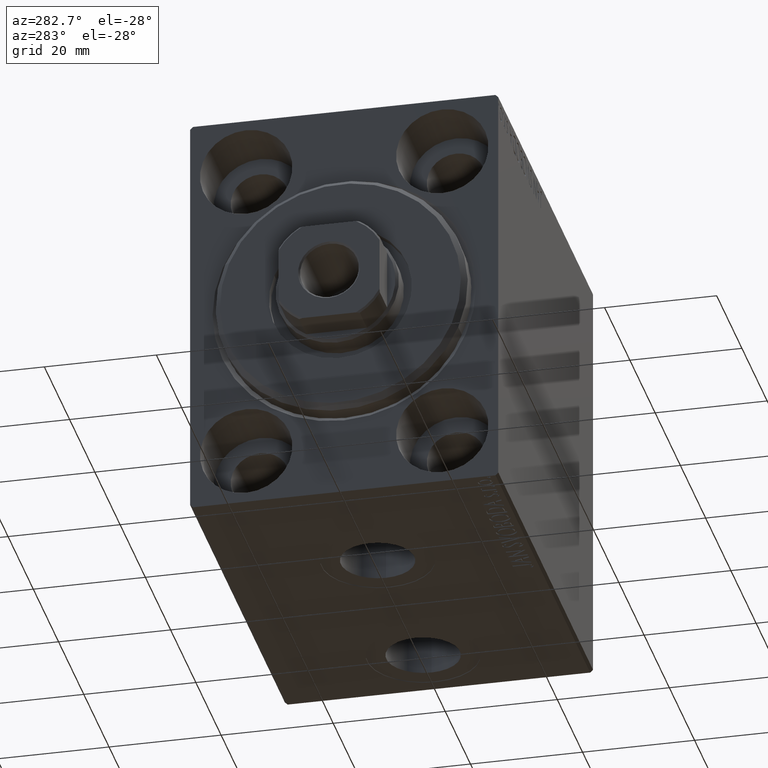
[diagram: clean part render]
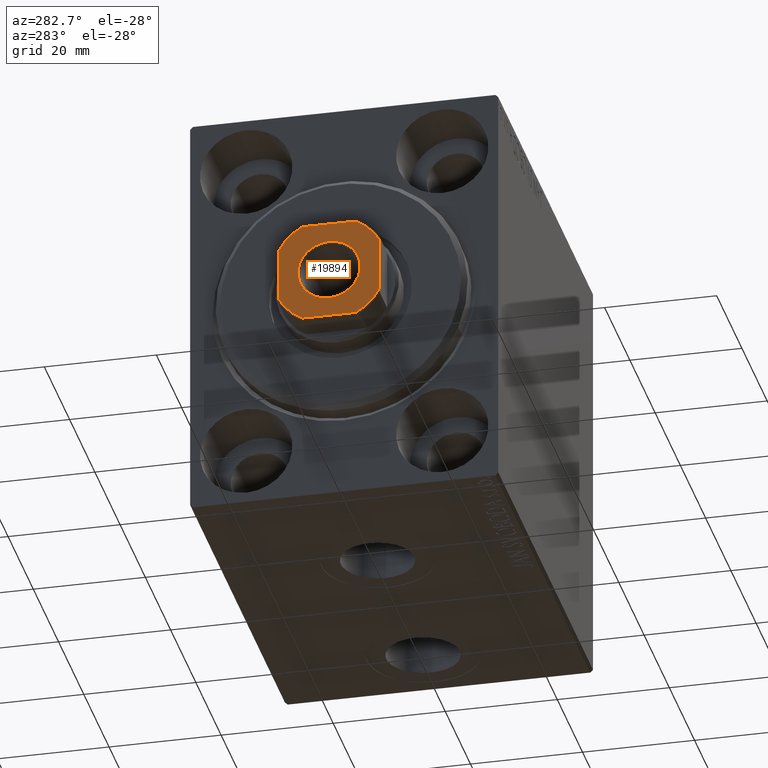
[diagram: same view with one face highlighted and labeled with its STEP entity id]
A machine part, auxiliary view. The second image highlights one B-rep face of the part: STEP entity #19894.
In plain terms, the highlighted planar face has unit normal (-1, 0, 0).
Its self-contained STEP definition (entity closure, byte-faithful):
#246 = CARTESIAN_POINT ( 'NONE',  ( 0.000000000000000000, 0.000000000000000000, 77.00000000000001421 ) ) ;
#634 = CIRCLE ( 'NONE', #23401, 10.20000000000000462 ) ;
#980 = ORIENTED_EDGE ( 'NONE', *, *, #42846, .T. ) ;
#2035 = CARTESIAN_POINT ( 'NONE',  ( 0.000000000000000000, 0.000000000000000000, 77.00000000000001421 ) ) ;
#2418 = DIRECTION ( 'NONE',  ( 1.000000000000000000, 0.000000000000000000, 0.000000000000000000 ) ) ;
#2532 = CARTESIAN_POINT ( 'NONE',  ( 9.000000000000001776, -4.800000000000007816, 77.00000000000001421 ) ) ;
#2654 = VERTEX_POINT ( 'NONE', #42446 ) ;
#2860 = DIRECTION ( 'NONE',  ( -0.000000000000000000, 0.000000000000000000, 1.000000000000000000 ) ) ;
#3159 = AXIS2_PLACEMENT_3D ( 'NONE', #23962, #23741, #13305 ) ;
#3887 = CIRCLE ( 'NONE', #3159, 10.19999999999999396 ) ;
#4149 = ORIENTED_EDGE ( 'NONE', *, *, #7291, .T. ) ;
#4389 = CARTESIAN_POINT ( 'NONE',  ( -8.999999999999998224, -4.799999999999999822, 77.00000000000001421 ) ) ;
#4807 = EDGE_CURVE ( 'NONE', #31740, #34334, #28391, .T. ) ;
#4815 = CARTESIAN_POINT ( 'NONE',  ( -8.999999999999998224, -9.000000000000001776, 77.00000000000001421 ) ) ;
#5781 = VERTEX_POINT ( 'NONE', #40286 ) ;
#5853 = AXIS2_PLACEMENT_3D ( 'NONE', #26437, #2860, #43556 ) ;
#6403 = CARTESIAN_POINT ( 'NONE',  ( -5.550000000000013145, 6.796789735267826558E-16, 77.00000000000001421 ) ) ;
#6589 = VECTOR ( 'NONE', #34751, 1000.000000000000000 ) ;
#6630 = PLANE ( 'NONE',  #5853 ) ;
#7291 = EDGE_CURVE ( 'NONE', #5781, #11635, #24075, .T. ) ;
#7361 = DIRECTION ( 'NONE',  ( 0.000000000000000000, -0.000000000000000000, -1.000000000000000000 ) ) ;
#7469 = EDGE_CURVE ( 'NONE', #39313, #8135, #34829, .T. ) ;
#7684 = EDGE_LOOP ( 'NONE', ( #33891, #20975 ) ) ;
#8135 = VERTEX_POINT ( 'NONE', #26366 ) ;
#8664 = EDGE_LOOP ( 'NONE', ( #21692, #18517, #30347, #27100, #20781, #980, #20106, #4149 ) ) ;
#9230 = AXIS2_PLACEMENT_3D ( 'NONE', #22874, #19101, #2418 ) ;
#9882 = EDGE_CURVE ( 'NONE', #19846, #5781, #18599, .T. ) ;
#9887 = VERTEX_POINT ( 'NONE', #4389 ) ;
#10306 = DIRECTION ( 'NONE',  ( -0.000000000000000000, 0.000000000000000000, 1.000000000000000000 ) ) ;
#11395 = LINE ( 'NONE', #38738, #6589 ) ;
#11635 = VERTEX_POINT ( 'NONE', #2532 ) ;
#13305 = DIRECTION ( 'NONE',  ( 1.000000000000000000, 0.000000000000000000, 0.000000000000000000 ) ) ;
#14296 = CARTESIAN_POINT ( 'NONE',  ( 0.000000000000000000, 0.000000000000000000, 77.00000000000001421 ) ) ;
#14951 = DIRECTION ( 'NONE',  ( -0.000000000000000000, 0.000000000000000000, 1.000000000000000000 ) ) ;
#15610 = DIRECTION ( 'NONE',  ( 1.000000000000000000, 0.000000000000000000, 0.000000000000000000 ) ) ;
#16966 = CIRCLE ( 'NONE', #19086, 10.19999999999999929 ) ;
#17808 = CARTESIAN_POINT ( 'NONE',  ( 8.999999999999998224, 4.800000000000010481, 77.00000000000001421 ) ) ;
#18517 = ORIENTED_EDGE ( 'NONE', *, *, #43797, .T. ) ;
#18599 = LINE ( 'NONE', #4815, #43324 ) ;
#19086 = AXIS2_PLACEMENT_3D ( 'NONE', #14296, #10306, #33881 ) ;
#19101 = DIRECTION ( 'NONE',  ( 0.000000000000000000, -0.000000000000000000, -1.000000000000000000 ) ) ;
#19122 = AXIS2_PLACEMENT_3D ( 'NONE', #43962, #41289, #36854 ) ;
#19846 = VERTEX_POINT ( 'NONE', #36889 ) ;
#19894 = ADVANCED_FACE ( 'NONE', ( #19975, #26222 ), #6630, .T. ) ;
#19975 = FACE_BOUND ( 'NONE', #7684, .T. ) ;
#20106 = ORIENTED_EDGE ( 'NONE', *, *, #9882, .T. ) ;
#20340 = EDGE_CURVE ( 'NONE', #2654, #9887, #11395, .T. ) ;
#20781 = ORIENTED_EDGE ( 'NONE', *, *, #20340, .T. ) ;
#20975 = ORIENTED_EDGE ( 'NONE', *, *, #4807, .T. ) ;
#21133 = DIRECTION ( 'NONE',  ( 1.000000000000000000, 0.000000000000000000, 0.000000000000000000 ) ) ;
#21692 = ORIENTED_EDGE ( 'NONE', *, *, #32213, .T. ) ;
#22607 = EDGE_CURVE ( 'NONE', #34334, #31740, #37168, .T. ) ;
#22874 = CARTESIAN_POINT ( 'NONE',  ( 0.000000000000000000, 0.000000000000000000, 77.00000000000001421 ) ) ;
#23088 = VECTOR ( 'NONE', #42749, 1000.000000000000000 ) ;
#23401 = AXIS2_PLACEMENT_3D ( 'NONE', #2035, #14951, #15610 ) ;
#23741 = DIRECTION ( 'NONE',  ( -0.000000000000000000, 0.000000000000000000, 1.000000000000000000 ) ) ;
#23962 = CARTESIAN_POINT ( 'NONE',  ( 0.000000000000000000, 0.000000000000000000, 77.00000000000001421 ) ) ;
#24075 = CIRCLE ( 'NONE', #19122, 10.20000000000000462 ) ;
#24815 = CARTESIAN_POINT ( 'NONE',  ( -9.000000000000001776, 8.999999999999998224, 77.00000000000001421 ) ) ;
#26222 = FACE_OUTER_BOUND ( 'NONE', #8664, .T. ) ;
#26366 = CARTESIAN_POINT ( 'NONE',  ( -4.799999999999990941, 8.999999999999998224, 77.00000000000001421 ) ) ;
#26426 = EDGE_CURVE ( 'NONE', #8135, #2654, #3887, .T. ) ;
#26437 = CARTESIAN_POINT ( 'NONE',  ( 0.000000000000000000, 0.000000000000000000, 77.00000000000001421 ) ) ;
#27100 = ORIENTED_EDGE ( 'NONE', *, *, #26426, .T. ) ;
#28391 = CIRCLE ( 'NONE', #9230, 5.550000000000013145 ) ;
#28972 = CARTESIAN_POINT ( 'NONE',  ( 5.550000000000013145, 0.000000000000000000, 77.00000000000001421 ) ) ;
#29178 = CARTESIAN_POINT ( 'NONE',  ( 8.999999999999998224, 8.999999999999998224, 77.00000000000001421 ) ) ;
#29867 = CARTESIAN_POINT ( 'NONE',  ( 4.800000000000012257, 8.999999999999998224, 77.00000000000001421 ) ) ;
#30347 = ORIENTED_EDGE ( 'NONE', *, *, #7469, .T. ) ;
#31732 = DIRECTION ( 'NONE',  ( 1.000000000000000000, 0.000000000000000000, 0.000000000000000000 ) ) ;
#31740 = VERTEX_POINT ( 'NONE', #6403 ) ;
#32213 = EDGE_CURVE ( 'NONE', #11635, #32421, #39407, .T. ) ;
#32421 = VERTEX_POINT ( 'NONE', #17808 ) ;
#33615 = AXIS2_PLACEMENT_3D ( 'NONE', #246, #7361, #21133 ) ;
#33881 = DIRECTION ( 'NONE',  ( 1.000000000000000000, 0.000000000000000000, 0.000000000000000000 ) ) ;
#33891 = ORIENTED_EDGE ( 'NONE', *, *, #22607, .T. ) ;
#34334 = VERTEX_POINT ( 'NONE', #28972 ) ;
#34751 = DIRECTION ( 'NONE',  ( 1.927470528863119049E-16, -1.000000000000000000, 0.000000000000000000 ) ) ;
#34829 = LINE ( 'NONE', #24815, #35436 ) ;
#35436 = VECTOR ( 'NONE', #38383, 1000.000000000000000 ) ;
#36854 = DIRECTION ( 'NONE',  ( 1.000000000000000000, 0.000000000000000000, 0.000000000000000000 ) ) ;
#36889 = CARTESIAN_POINT ( 'NONE',  ( -4.799999999999995381, -9.000000000000001776, 77.00000000000001421 ) ) ;
#37168 = CIRCLE ( 'NONE', #33615, 5.550000000000013145 ) ;
#38383 = DIRECTION ( 'NONE',  ( -1.000000000000000000, -0.000000000000000000, -0.000000000000000000 ) ) ;
#38738 = CARTESIAN_POINT ( 'NONE',  ( -9.000000000000001776, 8.999999999999998224, 77.00000000000001421 ) ) ;
#39313 = VERTEX_POINT ( 'NONE', #29867 ) ;
#39407 = LINE ( 'NONE', #29178, #23088 ) ;
#40286 = CARTESIAN_POINT ( 'NONE',  ( 4.800000000000006928, -9.000000000000001776, 77.00000000000001421 ) ) ;
#41289 = DIRECTION ( 'NONE',  ( -0.000000000000000000, 0.000000000000000000, 1.000000000000000000 ) ) ;
#42446 = CARTESIAN_POINT ( 'NONE',  ( -9.000000000000001776, 4.799999999999986500, 77.00000000000001421 ) ) ;
#42749 = DIRECTION ( 'NONE',  ( -1.927470528863119049E-16, 1.000000000000000000, -0.000000000000000000 ) ) ;
#42846 = EDGE_CURVE ( 'NONE', #9887, #19846, #16966, .T. ) ;
#43324 = VECTOR ( 'NONE', #31732, 1000.000000000000000 ) ;
#43556 = DIRECTION ( 'NONE',  ( 1.000000000000000000, 0.000000000000000000, 0.000000000000000000 ) ) ;
#43797 = EDGE_CURVE ( 'NONE', #32421, #39313, #634, .T. ) ;
#43962 = CARTESIAN_POINT ( 'NONE',  ( 0.000000000000000000, 0.000000000000000000, 77.00000000000001421 ) ) ;